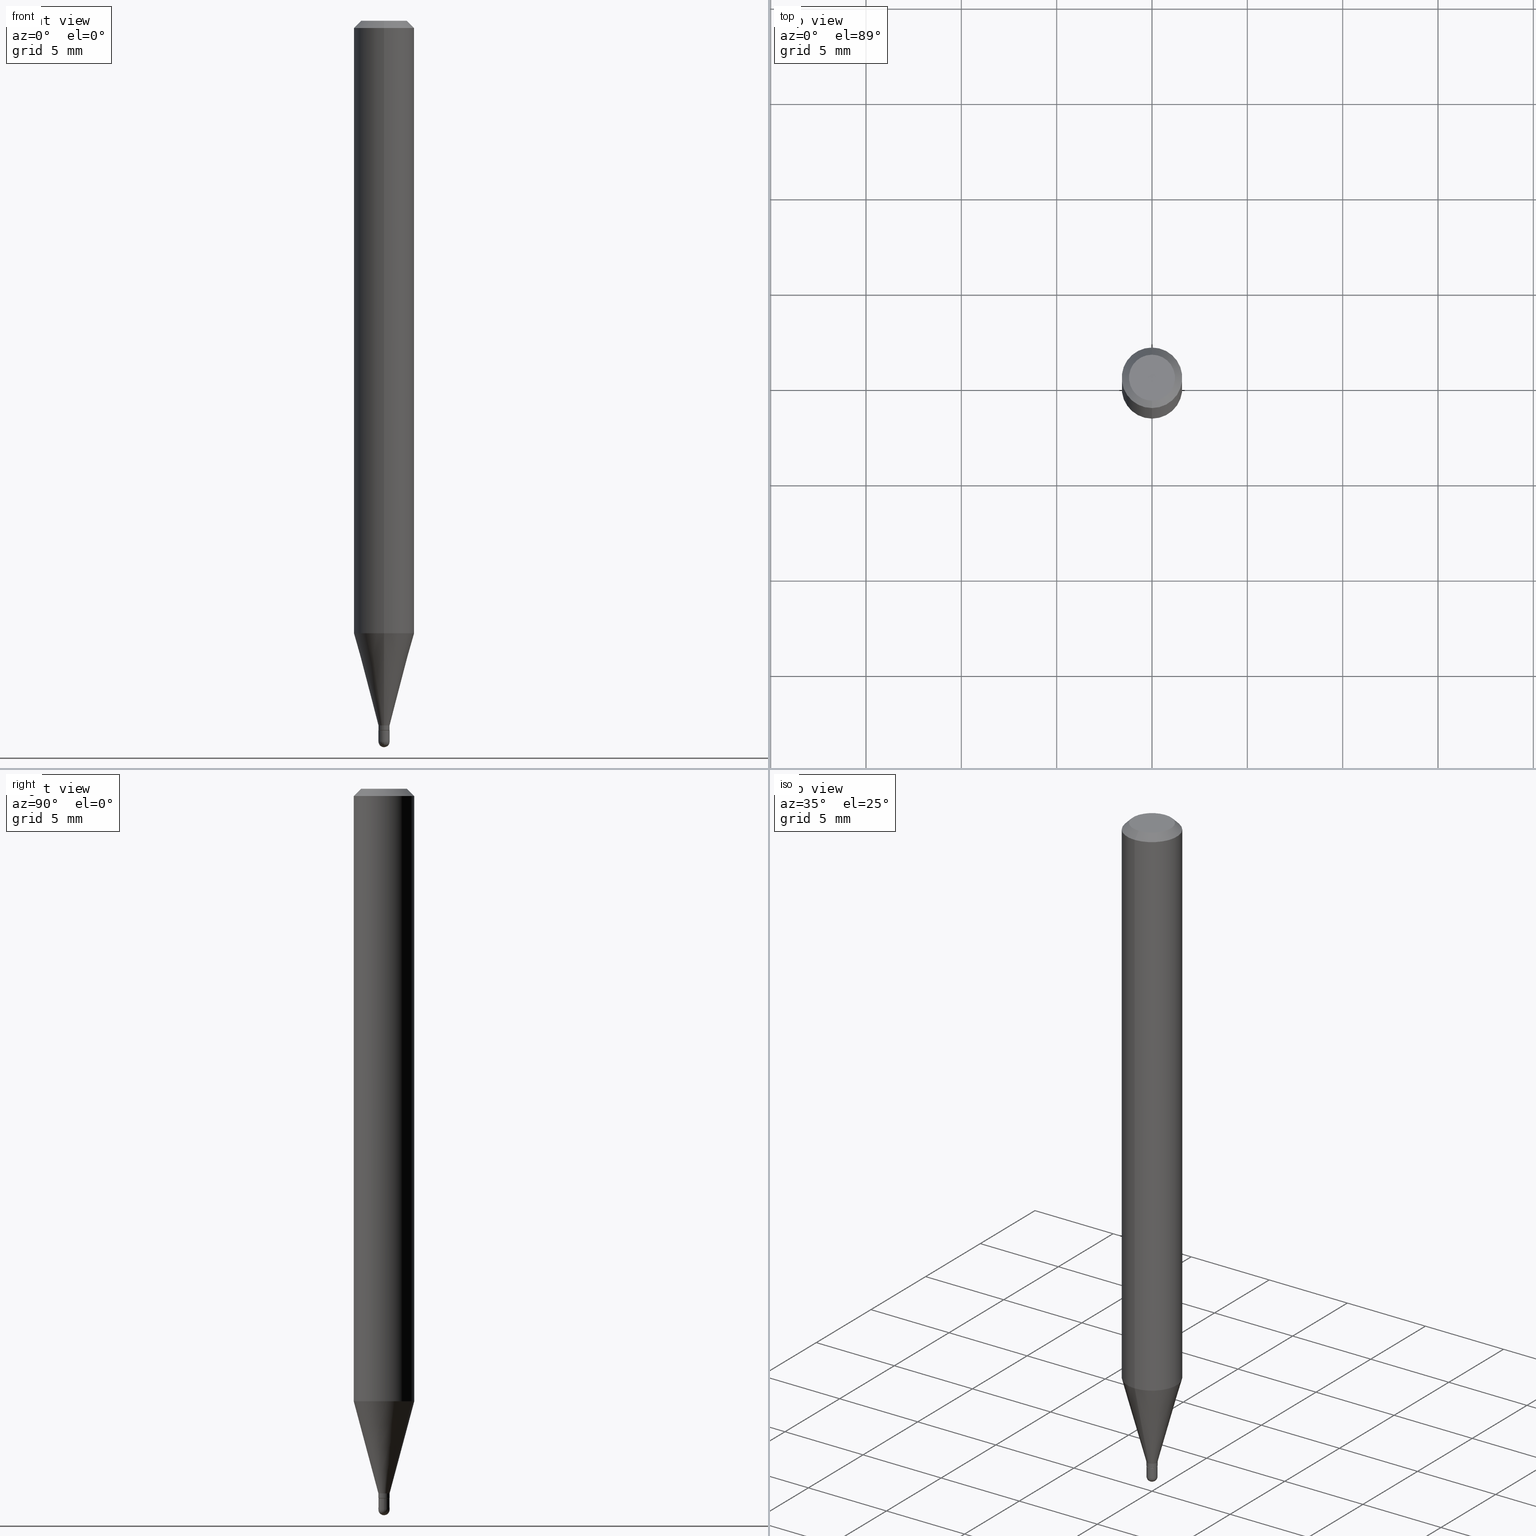
[diagram: canonical four-view strip — front | top / right | iso, engineering-drawing reading convention]
A machine part, canonical four-view strip (front | top / right | iso — engineering-drawing reading convention). The complete STEP part file that produces these views, byte-faithful:
ISO-10303-21;
HEADER;
FILE_DESCRIPTION (( 'STEP AP203' ),
    '1' );
FILE_NAME ('00687.STEP',
    '2024-03-07T18:01:51',
    ( '' ),
    ( '' ),
    'SwSTEP 2.0',
    'SolidWorks 2023',
    '' );
FILE_SCHEMA (( 'CONFIG_CONTROL_DESIGN' ));
ENDSEC;

DATA;
#1 = CARTESIAN_POINT ( 'NONE',  ( 2.166652610438211172E-46, -3.093421743981394745E-32, -8.859889004959399911E-18 ) ) ;
#2 = DIRECTION ( 'NONE',  ( -2.445462476138705994E-29, 3.491490403829918303E-15, 1.000000000000000000 ) ) ;
#3 = VERTEX_POINT ( 'NONE', #310 ) ;
#4 = LINE ( 'NONE', #309, #109 ) ;
#5 = DIRECTION ( 'NONE',  ( 1.839019923739600710E-15, 0.2588190451025250138, 0.9659258262890670910 ) ) ;
#6 = AXIS2_PLACEMENT_3D ( 'NONE', #473, #383, #121 ) ;
#7 = CIRCLE ( 'NONE', #511, 0.01149999999999992348 ) ;
#8 = ADVANCED_FACE ( 'NONE', ( #348 ), #200, .F. ) ;
#9 = ADVANCED_FACE ( 'NONE', ( #431 ), #44, .T. ) ;
#10 = DIRECTION ( 'NONE',  ( 1.000000000000000000, -6.982962677686291165E-15, 0.000000000000000000 ) ) ;
#11 = VERTEX_POINT ( 'NONE', #237 ) ;
#12 = MANIFOLD_SOLID_BREP ( 'Body-Move/Copy2[1]', #372 ) ;
#13 = FACE_OUTER_BOUND ( 'NONE', #119, .T. ) ;
#14 = CARTESIAN_POINT ( 'NONE',  ( -0.01149999999999999981, -5.074332652524203511E-15, -1.465000000000000080 ) ) ;
#15 = EDGE_CURVE ( 'NONE', #11, #404, #307, .T. ) ;
#16 = APPROVAL_DATE_TIME ( #485, #245 ) ;
#17 = CARTESIAN_POINT ( 'NONE',  ( 3.558147902781818147E-29, -5.080118537572531884E-15, -1.455000000000000293 ) ) ;
#18 = APPROVAL_PERSON_ORGANIZATION ( #74, #245, #453 ) ;
#19 = AXIS2_PLACEMENT_3D ( 'NONE', #390, #43, #205 ) ;
#20 = DIRECTION ( 'NONE',  ( 1.000000000000000000, -6.982962677686265922E-15, 4.883557194083112340E-29 ) ) ;
#21 = LINE ( 'NONE', #62, #341 ) ;
#22 = PRODUCT ( '00687', '00687', '', ( #231 ) ) ;
#23 = DATE_AND_TIME ( #222, #125 ) ;
#24 = DIRECTION ( 'NONE',  ( -6.982962677686266711E-15, -1.000000000000000000, 0.000000000000000000 ) ) ;
#25 = ORIENTED_EDGE ( 'NONE', *, *, #30, .F. ) ;
#26 = EDGE_CURVE ( 'NONE', #154, #280, #327, .T. ) ;
#27 = CARTESIAN_POINT ( 'NONE',  ( -4.287811248607203282E-16, -0.06250000000000005551, -0.01499999999999979128 ) ) ;
#28 = VERTEX_POINT ( 'NONE', #197 ) ;
#29 = CARTESIAN_POINT ( 'NONE',  ( 4.440892098500625669E-16, 0.06250000000000000000, -2.182181502393698939E-16 ) ) ;
#30 = EDGE_CURVE ( 'NONE', #425, #317, #487, .T. ) ;
#31 = DIRECTION ( 'NONE',  ( -6.982962677686265922E-15, -1.000000000000000000, 4.370956789862821150E-15 ) ) ;
#32 = ORIENTED_EDGE ( 'NONE', *, *, #456, .F. ) ;
#33 = CARTESIAN_POINT ( 'NONE',  ( 3.316907271900976096E-16, 0.04749999999999999362, -1.702757386844007983E-16 ) ) ;
#34 = DIRECTION ( 'NONE',  ( -2.445462476138705994E-29, 3.491490403829918303E-15, 1.000000000000000000 ) ) ;
#35 = CIRCLE ( 'NONE', #409, 0.01149999999999999981 ) ;
#36 = CARTESIAN_POINT ( 'NONE',  ( 3.640080318006575506E-29, -5.197069972868022017E-15, -1.488499999999999934 ) ) ;
#37 = ORIENTED_EDGE ( 'NONE', *, *, #99, .F. ) ;
#38 = DIRECTION ( 'NONE',  ( -2.445462476138705994E-29, 3.491490403829918303E-15, 1.000000000000000000 ) ) ;
#39 = ADVANCED_FACE ( 'NONE', ( #433 ), #86, .T. ) ;
#40 = CARTESIAN_POINT ( 'NONE',  ( 3.558147902781818147E-29, -5.080118537572531884E-15, -1.455000000000000293 ) ) ;
#41 = APPROVAL ( #337, 'UNSPECIFIED' ) ;
#42 = CARTESIAN_POINT ( 'NONE',  ( -4.364351673553916201E-16, -0.06250000000000000000, 2.182181502393698939E-16 ) ) ;
#43 = DIRECTION ( 'NONE',  ( -2.445462476138705994E-29, 3.491490403829918303E-15, 1.000000000000000000 ) ) ;
#44 = CONICAL_SURFACE ( 'NONE', #229, 0.01149999999999992348, 0.2617993877991502960 ) ;
#45 = CIRCLE ( 'NONE', #435, 0.06250000000000000000 ) ;
#46 = LINE ( 'NONE', #430, #282 ) ;
#47 = CARTESIAN_POINT ( 'NONE',  ( -8.030407079335600735E-17, -0.01150000000000507734, -1.464500000000000135 ) ) ;
#48 = DATE_TIME_ROLE ( 'classification_date' ) ;
#49 = CARTESIAN_POINT ( 'NONE',  ( 0.000000000000000000, 0.000000000000000000, 0.000000000000000000 ) ) ;
#50 = AXIS2_PLACEMENT_3D ( 'NONE', #134, #405, #65 ) ;
#51 = SPHERICAL_SURFACE ( 'NONE', #63, 0.01150000000000006919 ) ;
#52 = ADVANCED_FACE ( 'NONE', ( #355 ), #302, .T. ) ;
#53 = PERSON_AND_ORGANIZATION ( #467, #89 ) ;
#54 = DIRECTION ( 'NONE',  ( 6.982962677686265922E-15, 1.000000000000000000, 0.000000000000000000 ) ) ;
#55 = ADVANCED_FACE ( 'NONE', ( #144 ), #141, .F. ) ;
#56 = EDGE_LOOP ( 'NONE', ( #71, #115, #239, #506 ) ) ;
#57 = DIRECTION ( 'NONE',  ( -2.445462476138705994E-29, 3.491490403829918303E-15, 1.000000000000000000 ) ) ;
#58 = AXIS2_PLACEMENT_3D ( 'NONE', #136, #20, #54 ) ;
#59 = PRODUCT_DEFINITION_FORMATION_WITH_SPECIFIED_SOURCE ( 'ANY', '', #22, .NOT_KNOWN. ) ;
#60 = EDGE_CURVE ( 'NONE', #28, #269, #509, .T. ) ;
#61 = AXIS2_PLACEMENT_3D ( 'NONE', #465, #182, #295 ) ;
#62 = CARTESIAN_POINT ( 'NONE',  ( 0.01149999999999999981, -8.030407079339207309E-17, 5.607603292165326057E-31 ) ) ;
#63 = AXIS2_PLACEMENT_3D ( 'NONE', #488, #253, #178 ) ;
#64 = VERTEX_POINT ( 'NONE', #508 ) ;
#65 = DIRECTION ( 'NONE',  ( 1.000000000000000000, 0.000000000000000000, 0.000000000000000000 ) ) ;
#66 = FACE_OUTER_BOUND ( 'NONE', #376, .T. ) ;
#67 = EDGE_CURVE ( 'NONE', #403, #3, #250, .T. ) ;
#68 = EDGE_LOOP ( 'NONE', ( #32, #315, #503, #145 ) ) ;
#69 = DATE_TIME_ROLE ( 'creation_date' ) ;
#70 = CARTESIAN_POINT ( 'NONE',  ( -8.030407079339151842E-17, -0.01149999999999992348, 4.015213964404379099E-17 ) ) ;
#71 = ORIENTED_EDGE ( 'NONE', *, *, #349, .F. ) ;
#72 = CARTESIAN_POINT ( 'NONE',  ( 7.815970093364683513E-17, 0.01099999999999488540, -1.465000000000000080 ) ) ;
#73 = AXIS2_PLACEMENT_3D ( 'NONE', #36, #85, #480 ) ;
#74 = PERSON_AND_ORGANIZATION ( #467, #89 ) ;
#75 = CARTESIAN_POINT ( 'NONE',  ( -4.364351673553912750E-16, -0.06250000000000005551, -0.01499999999999979128 ) ) ;
#76 = ORIENTED_EDGE ( 'NONE', *, *, #481, .T. ) ;
#77 = SPHERICAL_SURFACE ( 'NONE', #421, 0.01150000000000006919 ) ;
#78 = EDGE_LOOP ( 'NONE', ( #293, #419, #273, #339 ) ) ;
#79 = CARTESIAN_POINT ( 'NONE',  ( 0.01149999999999999981, -5.236349137930007031E-15, -1.488499999999999934 ) ) ;
#80 = VERTEX_POINT ( 'NONE', #382 ) ;
#81 = CYLINDRICAL_SURFACE ( 'NONE', #343, 0.01149999999999992348 ) ;
#82 = PRODUCT_RELATED_PRODUCT_CATEGORY ( 'detail', '', ( #22 ) ) ;
#83 = EDGE_CURVE ( 'NONE', #494, #336, #232, .T. ) ;
#84 = DIRECTION ( 'NONE',  ( -6.982962677686265133E-15, -1.000000000000000000, 0.000000000000000000 ) ) ;
#85 = DIRECTION ( 'NONE',  ( -2.445468806185136597E-29, 3.491481338843145583E-15, 1.000000000000000000 ) ) ;
#86 = CYLINDRICAL_SURFACE ( 'NONE', #19, 0.06250000000000000000 ) ;
#87 = DIRECTION ( 'NONE',  ( -2.445462476138705994E-29, 3.491490403829918303E-15, 1.000000000000000000 ) ) ;
#88 = CIRCLE ( 'NONE', #126, 0.06250000000000000000 ) ;
#89 = ORGANIZATION ( 'UNSPECIFIED', 'UNSPECIFIED', '' ) ;
#90 = ORIENTED_EDGE ( 'NONE', *, *, #377, .F. ) ;
#91 = CONICAL_SURFACE ( 'NONE', #479, 0.01100000000000000110, 0.7853981633974739252 ) ;
#92 = DIRECTION ( 'NONE',  ( -7.105427357600999492E-15, -1.000000000000000000, 0.000000000000000000 ) ) ;
#93 = CALENDAR_DATE ( 2024, 7, 3 ) ;
#94 =( CONVERSION_BASED_UNIT ( 'INCH', #220 ) LENGTH_UNIT ( ) NAMED_UNIT ( #135 ) );
#95 = DIRECTION ( 'NONE',  ( -2.445462476138705994E-29, 3.491490403829918303E-15, 1.000000000000000000 ) ) ;
#96 = PERSON_AND_ORGANIZATION_ROLE ( 'creator' ) ;
#97 = CONICAL_SURFACE ( 'NONE', #102, 0.01100000000000000110, 0.7853981633974739252 ) ;
#98 = FACE_OUTER_BOUND ( 'NONE', #202, .T. ) ;
#99 = EDGE_CURVE ( 'NONE', #80, #269, #106, .T. ) ;
#100 = EDGE_CURVE ( 'NONE', #379, #3, #299, .T. ) ;
#101 = FACE_OUTER_BOUND ( 'NONE', #192, .T. ) ;
#102 = AXIS2_PLACEMENT_3D ( 'NONE', #238, #87, #384 ) ;
#103 = VERTEX_POINT ( 'NONE', #340 ) ;
#104 = PERSON_AND_ORGANIZATION ( #467, #89 ) ;
#105 = DIRECTION ( 'NONE',  ( 6.982962677686265922E-15, 1.000000000000000000, 0.000000000000000000 ) ) ;
#106 = LINE ( 'NONE', #265, #363 ) ;
#107 = EDGE_CURVE ( 'NONE', #404, #103, #422, .T. ) ;
#108 = EDGE_LOOP ( 'NONE', ( #37, #452, #221, #455, #346 ) ) ;
#109 = VECTOR ( 'NONE', #472, 39.37007874015748143 ) ;
#110 = EDGE_LOOP ( 'NONE', ( #412, #423 ) ) ;
#111 = ORIENTED_EDGE ( 'NONE', *, *, #164, .T. ) ;
#112 = CARTESIAN_POINT ( 'NONE',  ( 3.639096876774019405E-29, -5.198478316687040897E-15, -1.488499999999999934 ) ) ;
#113 = ORIENTED_EDGE ( 'NONE', *, *, #67, .F. ) ;
#114 = CARTESIAN_POINT ( 'NONE',  ( -8.030407079335594572E-17, -0.01150000000000500275, -1.455000000000000293 ) ) ;
#115 = ORIENTED_EDGE ( 'NONE', *, *, #188, .T. ) ;
#116 = CC_DESIGN_PERSON_AND_ORGANIZATION_ASSIGNMENT ( #130, #285, ( #59 ) ) ;
#117 = VECTOR ( 'NONE', #95, 39.37007874015748143 ) ;
#118 = DIRECTION ( 'NONE',  ( 1.000000000000000000, -6.982962677686291165E-15, 0.000000000000000000 ) ) ;
#119 = EDGE_LOOP ( 'NONE', ( #173, #76, #301, #142 ) ) ;
#120 = DIRECTION ( 'NONE',  ( 1.000000000000000000, -6.982962677686267499E-15, 4.876176775795935793E-29 ) ) ;
#121 = DIRECTION ( 'NONE',  ( 1.000000000000000000, -6.982962677686291165E-15, 0.000000000000000000 ) ) ;
#122 = DIRECTION ( 'NONE',  ( -2.445462476138705994E-29, 3.491490403829918303E-15, 1.000000000000000000 ) ) ;
#123 = CARTESIAN_POINT ( 'NONE',  ( 8.171241461244653802E-17, 0.01149999999999484421, -1.455000000000000293 ) ) ;
#124 = DIRECTION ( 'NONE',  ( -6.982962677686266711E-15, -1.000000000000000000, 3.491490403829918697E-15 ) ) ;
#125 = LOCAL_TIME ( 13, 1, 51.00000000000000000, #462 ) ;
#126 = AXIS2_PLACEMENT_3D ( 'NONE', #234, #378, #31 ) ;
#127 = CALENDAR_DATE ( 2024, 7, 3 ) ;
#128 = DIRECTION ( 'NONE',  ( -2.445468806185136597E-29, 3.491481338843145583E-15, 1.000000000000000000 ) ) ;
#129 = CARTESIAN_POINT ( 'NONE',  ( 4.440892098500932831E-16, 0.06249999999999557992, -1.264665408813988146 ) ) ;
#130 = PERSON_AND_ORGANIZATION ( #467, #89 ) ;
#131 = ADVANCED_FACE ( 'NONE', ( #66 ), #191, .T. ) ;
#132 = APPROVAL ( #324, 'UNSPECIFIED' ) ;
#133 = CIRCLE ( 'NONE', #507, 0.06250000000000000000 ) ;
#134 = CARTESIAN_POINT ( 'NONE',  ( 0.000000000000000000, 0.000000000000000000, 0.000000000000000000 ) ) ;
#135 = DIMENSIONAL_EXPONENTS ( 1.000000000000000000, 0.000000000000000000, 0.000000000000000000, 0.000000000000000000, 0.000000000000000000, 0.000000000000000000, 0.000000000000000000 ) ;
#136 = CARTESIAN_POINT ( 'NONE',  ( 3.639096876774019405E-29, -5.198478316687040897E-15, -1.488499999999999934 ) ) ;
#137 = PRODUCT_DEFINITION_SHAPE ( 'NONE', 'NONE',  #252 ) ;
#138 = ORIENTED_EDGE ( 'NONE', *, *, #489, .F. ) ;
#139 = LOCAL_TIME ( 13, 1, 51.00000000000000000, #143 ) ;
#140 = PERSON_AND_ORGANIZATION_ROLE ( 'creator' ) ;
#141 = PLANE ( 'NONE',  #218 ) ;
#142 = ORIENTED_EDGE ( 'NONE', *, *, #211, .F. ) ;
#143 = COORDINATED_UNIVERSAL_TIME_OFFSET ( 5, 0, .BEHIND. ) ;
#144 = FACE_OUTER_BOUND ( 'NONE', #464, .T. ) ;
#145 = ORIENTED_EDGE ( 'NONE', *, *, #294, .F. ) ;
#146 = DATE_AND_TIME ( #504, #292 ) ;
#147 = CARTESIAN_POINT ( 'NONE',  ( 3.668193714208060812E-31, -5.237235605744880487E-17, -0.01500000000000000812 ) ) ;
#148 = ORIENTED_EDGE ( 'NONE', *, *, #100, .F. ) ;
#149 = AXIS2_PLACEMENT_3D ( 'NONE', #314, #128, #350 ) ;
#150 = APPLICATION_PROTOCOL_DEFINITION ( 'international standard', 'config_control_design', 1994, #261 ) ;
#151 = APPROVAL_PERSON_ORGANIZATION ( #104, #41, #380 ) ;
#152 = DIRECTION ( 'NONE',  ( -2.445462476138705994E-29, 3.491490403829918303E-15, 1.000000000000000000 ) ) ;
#153 = AXIS2_PLACEMENT_3D ( 'NONE', #206, #318, #10 ) ;
#154 = VERTEX_POINT ( 'NONE', #189 ) ;
#155 = DIRECTION ( 'NONE',  ( 2.445462476138705994E-29, -3.491490403829918303E-15, -1.000000000000000000 ) ) ;
#156 = ORIENTED_EDGE ( 'NONE', *, *, #83, .T. ) ;
#157 = EDGE_CURVE ( 'NONE', #269, #28, #35, .T. ) ;
#158 = DIRECTION ( 'NONE',  ( -2.445468806185136597E-29, 3.491481338843145583E-15, 1.000000000000000000 ) ) ;
#159 = ORIENTED_EDGE ( 'NONE', *, *, #15, .F. ) ;
#160 = LOCAL_TIME ( 13, 1, 51.00000000000000000, #438 ) ;
#161 = FACE_OUTER_BOUND ( 'NONE', #271, .T. ) ;
#162 = AXIS2_PLACEMENT_3D ( 'NONE', #186, #370, #304 ) ;
#163 = ORIENTED_EDGE ( 'NONE', *, *, #489, .T. ) ;
#164 = EDGE_CURVE ( 'NONE', #103, #190, #133, .T. ) ;
#165 = DIRECTION ( 'NONE',  ( -2.445462476138705994E-29, 3.491490403829918303E-15, 1.000000000000000000 ) ) ;
#166 = CARTESIAN_POINT ( 'NONE',  ( 8.030407079342786765E-17, 0.01149999999999488411, -1.465000000000000080 ) ) ;
#167 = CARTESIAN_POINT ( 'NONE',  ( 0.000000000000000000, 0.000000000000000000, 0.000000000000000000 ) ) ;
#168 = DIRECTION ( 'NONE',  ( -6.982962677686265922E-15, -1.000000000000000000, 3.483106191921935554E-15 ) ) ;
#169 = CIRCLE ( 'NONE', #58, 0.01150000000000006919 ) ;
#170 = EDGE_LOOP ( 'NONE', ( #296, #483, #298, #227, #225 ) ) ;
#171 = DIRECTION ( 'NONE',  ( -2.445462476138705994E-29, 3.491490403829918303E-15, 1.000000000000000000 ) ) ;
#172 = ADVANCED_FACE ( 'NONE', ( #459 ), #77, .T. ) ;
#173 = ORIENTED_EDGE ( 'NONE', *, *, #67, .T. ) ;
#174 = LINE ( 'NONE', #399, #117 ) ;
#175 = PERSON_AND_ORGANIZATION ( #467, #89 ) ;
#176 = MANIFOLD_SOLID_BREP ( 'Body-Move/Copy2[2]', #249 ) ;
#177 =( NAMED_UNIT ( * ) PLANE_ANGLE_UNIT ( ) SI_UNIT ( $, .RADIAN. ) );
#178 = DIRECTION ( 'NONE',  ( 6.982962677686265922E-15, 1.000000000000000000, 0.000000000000000000 ) ) ;
#179 =( LENGTH_UNIT ( ) NAMED_UNIT ( * ) SI_UNIT ( $, .METRE. ) );
#180 = ORIENTED_EDGE ( 'NONE', *, *, #482, .F. ) ;
#181 = APPROVAL_DATE_TIME ( #23, #41 ) ;
#182 = DIRECTION ( 'NONE',  ( -2.445468806185136597E-29, 3.491481338843145583E-15, 1.000000000000000000 ) ) ;
#183 = ORIENTED_EDGE ( 'NONE', *, *, #391, .F. ) ;
#184 = APPROVAL_PERSON_ORGANIZATION ( #53, #132, #289 ) ;
#185 = CIRCLE ( 'NONE', #196, 0.06250000000000000000 ) ;
#186 = CARTESIAN_POINT ( 'NONE',  ( 0.000000000000000000, 0.000000000000000000, 0.000000000000000000 ) ) ;
#187 = ORIENTED_EDGE ( 'NONE', *, *, #493, .F. ) ;
#188 = EDGE_CURVE ( 'NONE', #317, #190, #332, .T. ) ;
#189 = CARTESIAN_POINT ( 'NONE',  ( -8.171241461237535565E-17, -0.01150000000000523347, -1.488499999999999934 ) ) ;
#190 = VERTEX_POINT ( 'NONE', #75 ) ;
#191 = CYLINDRICAL_SURFACE ( 'NONE', #162, 0.01149999999999992348 ) ;
#192 = EDGE_LOOP ( 'NONE', ( #224, #411, #90, #260 ) ) ;
#193 = CIRCLE ( 'NONE', #371, 0.01149999999999992521 ) ;
#194 = CARTESIAN_POINT ( 'NONE',  ( 3.558147902781818147E-29, -5.080118537572531884E-15, -1.455000000000000293 ) ) ;
#195 = EDGE_CURVE ( 'NONE', #404, #336, #88, .T. ) ;
#196 = AXIS2_PLACEMENT_3D ( 'NONE', #203, #165, #316 ) ;
#197 = CARTESIAN_POINT ( 'NONE',  ( 0.01149999999999999981, -5.195324232198600513E-15, -1.465000000000000080 ) ) ;
#198 = DIRECTION ( 'NONE',  ( -6.982962677686265922E-15, -1.000000000000000000, 0.000000000000000000 ) ) ;
#199 = ORIENTED_EDGE ( 'NONE', *, *, #345, .T. ) ;
#200 = PLANE ( 'NONE',  #352 ) ;
#201 = CARTESIAN_POINT ( 'NONE',  ( 0.000000000000000000, 0.000000000000000000, 0.000000000000000000 ) ) ;
#202 = EDGE_LOOP ( 'NONE', ( #187, #138 ) ) ;
#203 = CARTESIAN_POINT ( 'NONE',  ( 3.092691802125223590E-29, -4.415567138929678852E-15, -1.264665408813987924 ) ) ;
#204 = CONICAL_SURFACE ( 'NONE', #274, 0.06250000000000000000, 0.7853981633974483900 ) ;
#205 = DIRECTION ( 'NONE',  ( -6.982962677686265922E-15, -1.000000000000000000, 3.491490403829918303E-15 ) ) ;
#206 = CARTESIAN_POINT ( 'NONE',  ( 3.640080318006575506E-29, -5.197069972868022017E-15, -1.488499999999999934 ) ) ;
#207 = DIRECTION ( 'NONE',  ( -1.000000000000000000, 7.105427357601001070E-15, -4.926315508542082329E-29 ) ) ;
#208 = EDGE_CURVE ( 'NONE', #11, #494, #313, .T. ) ;
#209 = SHAPE_DEFINITION_REPRESENTATION ( #137, #417 ) ;
#210 = ADVANCED_FACE ( 'NONE', ( #512 ), #204, .T. ) ;
#211 = EDGE_CURVE ( 'NONE', #403, #494, #454, .T. ) ;
#212 = CARTESIAN_POINT ( 'NONE',  ( 3.582602527543203724E-29, -5.115033441610829497E-15, -1.465000000000000080 ) ) ;
#213 = DIRECTION ( 'NONE',  ( -2.445462476138705994E-29, 3.491490403829918303E-15, 1.000000000000000000 ) ) ;
#214 = ADVANCED_FACE ( 'NONE', ( #432 ), #320, .T. ) ;
#215 = ORIENTED_EDGE ( 'NONE', *, *, #493, .T. ) ;
#216 = CARTESIAN_POINT ( 'NONE',  ( 3.582602527543203724E-29, -5.115033441610829497E-15, -1.465000000000000080 ) ) ;
#217 = CC_DESIGN_SECURITY_CLASSIFICATION ( #495, ( #59 ) ) ;
#218 = AXIS2_PLACEMENT_3D ( 'NONE', #33, #338, #297 ) ;
#219 = CIRCLE ( 'NONE', #334, 0.01150000000000006919 ) ;
#220 = LENGTH_MEASURE_WITH_UNIT ( LENGTH_MEASURE( 0.02539999999999999897 ), #179 );
#221 = ORIENTED_EDGE ( 'NONE', *, *, #26, .T. ) ;
#222 = CALENDAR_DATE ( 2024, 7, 3 ) ;
#223 = DIRECTION ( 'NONE',  ( -2.445468806185136877E-29, 3.491481338843145188E-15, 1.000000000000000000 ) ) ;
#224 = ORIENTED_EDGE ( 'NONE', *, *, #325, .F. ) ;
#225 = ORIENTED_EDGE ( 'NONE', *, *, #377, .T. ) ;
#226 = DIRECTION ( 'NONE',  ( -2.445462476138705994E-29, 3.491490403829918303E-15, 1.000000000000000000 ) ) ;
#227 = ORIENTED_EDGE ( 'NONE', *, *, #500, .F. ) ;
#228 = CC_DESIGN_DATE_AND_TIME_ASSIGNMENT ( #448, #48, ( #495 ) ) ;
#229 = AXIS2_PLACEMENT_3D ( 'NONE', #40, #388, #84 ) ;
#230 = CIRCLE ( 'NONE', #444, 0.01149999999999999981 ) ;
#231 = MECHANICAL_CONTEXT ( 'NONE', #413, 'mechanical' ) ;
#232 = LINE ( 'NONE', #114, #353 ) ;
#233 = APPROVAL_STATUS ( 'not_yet_approved' ) ;
#234 = CARTESIAN_POINT ( 'NONE',  ( 3.092691802125223590E-29, -4.415567138929678852E-15, -1.264665408813987924 ) ) ;
#235 = VERTEX_POINT ( 'NONE', #354 ) ;
#236 = DIRECTION ( 'NONE',  ( -6.982962677686265922E-15, -1.000000000000000000, 3.483106191921935554E-15 ) ) ;
#237 = CARTESIAN_POINT ( 'NONE',  ( 2.629008122312701386E-16, 0.01149999999999484421, -1.455000000000000293 ) ) ;
#238 = CARTESIAN_POINT ( 'NONE',  ( 3.582602527543203724E-29, -5.115033441610829497E-15, -1.465000000000000080 ) ) ;
#239 = ORIENTED_EDGE ( 'NONE', *, *, #241, .T. ) ;
#240 = CARTESIAN_POINT ( 'NONE',  ( 3.640080318006575506E-29, -5.197069972868022017E-15, -1.488499999999999934 ) ) ;
#241 = EDGE_CURVE ( 'NONE', #190, #103, #45, .T. ) ;
#242 = ORIENTED_EDGE ( 'NONE', *, *, #195, .F. ) ;
#243 = CARTESIAN_POINT ( 'NONE',  ( 3.639096876774019405E-29, -5.198478316687040897E-15, -1.488499999999999934 ) ) ;
#244 = ORIENTED_EDGE ( 'NONE', *, *, #208, .T. ) ;
#245 = APPROVAL ( #233, 'UNSPECIFIED' ) ;
#246 = VECTOR ( 'NONE', #152, 39.37007874015748143 ) ;
#247 = CC_DESIGN_APPROVAL ( #245, ( #59 ) ) ;
#248 = CARTESIAN_POINT ( 'NONE',  ( -4.364351673553607559E-16, -0.06250000000000441314, -1.264665408813987479 ) ) ;
#249 = CLOSED_SHELL ( 'NONE', ( #397, #319, #52, #447, #9, #477, #39, #210, #55, #426, #287, #131 ) ) ;
#250 = CIRCLE ( 'NONE', #498, 0.01149999999999992521 ) ;
#251 = CARTESIAN_POINT ( 'NONE',  ( 3.558147902781818147E-29, -5.080118537572531884E-15, -1.455000000000000293 ) ) ;
#252 = PRODUCT_DEFINITION ( 'UNKNOWN', '', #59, #496 ) ;
#253 = DIRECTION ( 'NONE',  ( -1.000000000000000000, 6.982962677686265922E-15, -4.883557194083112901E-29 ) ) ;
#254 = AXIS2_PLACEMENT_3D ( 'NONE', #216, #213, #255 ) ;
#255 = DIRECTION ( 'NONE',  ( -6.982962677686265922E-15, -1.000000000000000000, 0.000000000000000000 ) ) ;
#256 = FACE_OUTER_BOUND ( 'NONE', #386, .T. ) ;
#257 = DIRECTION ( 'NONE',  ( -6.982962677686265133E-15, -1.000000000000000000, 0.000000000000000000 ) ) ;
#258 = ORIENTED_EDGE ( 'NONE', *, *, #100, .T. ) ;
#259 = AXIS2_PLACEMENT_3D ( 'NONE', #322, #446, #491 ) ;
#260 = ORIENTED_EDGE ( 'NONE', *, *, #26, .F. ) ;
#261 = APPLICATION_CONTEXT ( 'configuration controlled 3d designs of mechanical parts and assemblies' ) ;
#262 = EDGE_CURVE ( 'NONE', #425, #103, #4, .T. ) ;
#263 = DIRECTION ( 'NONE',  ( 6.982962677686265922E-15, 1.000000000000000000, -3.483106191921935554E-15 ) ) ;
#264 = CC_DESIGN_PERSON_AND_ORGANIZATION_ASSIGNMENT ( #291, #369, ( #22 ) ) ;
#265 = CARTESIAN_POINT ( 'NONE',  ( -0.01149999999999999981, 8.171241461241151999E-17, -5.656775353793142476E-31 ) ) ;
#266 = LOCAL_TIME ( 13, 1, 51.00000000000000000, #402 ) ;
#267 = AXIS2_PLACEMENT_3D ( 'NONE', #201, #357, #120 ) ;
#268 = DIRECTION ( 'NONE',  ( -2.445462476138705994E-29, 3.491490403829918303E-15, 1.000000000000000000 ) ) ;
#269 = VERTEX_POINT ( 'NONE', #14 ) ;
#270 = DIRECTION ( 'NONE',  ( -2.445462476138705994E-29, 3.491490403829918303E-15, 1.000000000000000000 ) ) ;
#271 = EDGE_LOOP ( 'NONE', ( #215, #258, #113, #183 ) ) ;
#272 = DIRECTION ( 'NONE',  ( -1.807323732225330534E-15, -0.2588190451025182415, 0.9659258262890689783 ) ) ;
#273 = ORIENTED_EDGE ( 'NONE', *, *, #345, .F. ) ;
#274 = AXIS2_PLACEMENT_3D ( 'NONE', #497, #155, #263 ) ;
#275 = FACE_OUTER_BOUND ( 'NONE', #333, .T. ) ;
#276 = DIRECTION ( 'NONE',  ( 2.438088387897960049E-29, -3.491481338843145188E-15, -1.000000000000000000 ) ) ;
#277 = CARTESIAN_POINT ( 'NONE',  ( 8.030407079342869349E-17, 0.01149999999999483553, -1.488499999999999934 ) ) ;
#278 = VERTEX_POINT ( 'NONE', #277 ) ;
#279 = CYLINDRICAL_SURFACE ( 'NONE', #149, 0.01149999999999999981 ) ;
#280 = VERTEX_POINT ( 'NONE', #79 ) ;
#281 = CARTESIAN_POINT ( 'NONE',  ( 7.993605777304681600E-17, 0.01099999999999488540, -1.465000000000000080 ) ) ;
#282 = VECTOR ( 'NONE', #356, 39.37007874015748143 ) ;
#283 = EDGE_CURVE ( 'NONE', #80, #154, #303, .T. ) ;
#284 = DIRECTION ( 'NONE',  ( -2.445462476138705994E-29, 3.491490403829918303E-15, 1.000000000000000000 ) ) ;
#285 = PERSON_AND_ORGANIZATION_ROLE ( 'design_supplier' ) ;
#286 = ORIENTED_EDGE ( 'NONE', *, *, #241, .F. ) ;
#287 = ADVANCED_FACE ( 'NONE', ( #275 ), #91, .T. ) ;
#288 = ORIENTED_EDGE ( 'NONE', *, *, #391, .T. ) ;
#289 = APPROVAL_ROLE ( '' ) ;
#290 = PLANE ( 'NONE',  #259 ) ;
#291 = PERSON_AND_ORGANIZATION ( #467, #89 ) ;
#292 = LOCAL_TIME ( 13, 1, 51.00000000000000000, #501 ) ;
#293 = ORIENTED_EDGE ( 'NONE', *, *, #381, .T. ) ;
#294 = EDGE_CURVE ( 'NONE', #278, #80, #366, .T. ) ;
#295 = DIRECTION ( 'NONE',  ( 1.000000000000000000, -6.982962677686291165E-15, 0.000000000000000000 ) ) ;
#296 = ORIENTED_EDGE ( 'NONE', *, *, #294, .T. ) ;
#297 = DIRECTION ( 'NONE',  ( 6.982962677686265922E-15, 1.000000000000000000, -3.491490403829918303E-15 ) ) ;
#298 = ORIENTED_EDGE ( 'NONE', *, *, #60, .F. ) ;
#299 = LINE ( 'NONE', #72, #300 ) ;
#300 = VECTOR ( 'NONE', #375, 39.37007874015748143 ) ;
#301 = ORIENTED_EDGE ( 'NONE', *, *, #381, .F. ) ;
#302 = CONICAL_SURFACE ( 'NONE', #365, 0.06250000000000000000, 0.7853981633974483900 ) ;
#303 = CIRCLE ( 'NONE', #73, 0.01149999999999999981 ) ;
#304 = DIRECTION ( 'NONE',  ( -6.982962677686265133E-15, -1.000000000000000000, 3.491490403829917909E-15 ) ) ;
#305 = ORIENTED_EDGE ( 'NONE', *, *, #481, .F. ) ;
#306 = DIRECTION ( 'NONE',  ( -4.851104656540964275E-15, -0.7071067811865500152, -0.7071067811865450192 ) ) ;
#307 = LINE ( 'NONE', #123, #442 ) ;
#308 = ADVANCED_FACE ( 'NONE', ( #437 ), #279, .T. ) ;
#309 = CARTESIAN_POINT ( 'NONE',  ( 4.364351673553919652E-16, 0.06249999999999995143, -0.01500000000000022669 ) ) ;
#310 = CARTESIAN_POINT ( 'NONE',  ( 8.171241461244651337E-17, 0.01149999999999477308, -1.464500000000000135 ) ) ;
#311 = AXIS2_PLACEMENT_3D ( 'NONE', #17, #57, #257 ) ;
#312 = CC_DESIGN_PERSON_AND_ORGANIZATION_ASSIGNMENT ( #406, #441, ( #495 ) ) ;
#313 = CIRCLE ( 'NONE', #461, 0.01149999999999992348 ) ;
#314 = CARTESIAN_POINT ( 'NONE',  ( 0.000000000000000000, 0.000000000000000000, 0.000000000000000000 ) ) ;
#315 = ORIENTED_EDGE ( 'NONE', *, *, #325, .T. ) ;
#316 = DIRECTION ( 'NONE',  ( -6.982962677686265922E-15, -1.000000000000000000, 4.370956789862821150E-15 ) ) ;
#317 = VERTEX_POINT ( 'NONE', #468 ) ;
#318 = DIRECTION ( 'NONE',  ( -2.445468806185136597E-29, 3.491481338843145583E-15, 1.000000000000000000 ) ) ;
#319 = ADVANCED_FACE ( 'NONE', ( #161 ), #97, .T. ) ;
#320 = CYLINDRICAL_SURFACE ( 'NONE', #267, 0.01149999999999999981 ) ;
#321 = VECTOR ( 'NONE', #306, 39.37007874015748143 ) ;
#322 = CARTESIAN_POINT ( 'NONE',  ( 3.582602527543203724E-29, -5.115033441610829497E-15, -1.465000000000000080 ) ) ;
#323 = CALENDAR_DATE ( 2024, 7, 3 ) ;
#324 = APPROVAL_STATUS ( 'not_yet_approved' ) ;
#325 = EDGE_CURVE ( 'NONE', #235, #154, #219, .T. ) ;
#326 =( NAMED_UNIT ( * ) SI_UNIT ( $, .STERADIAN. ) SOLID_ANGLE_UNIT ( ) );
#327 = CIRCLE ( 'NONE', #6, 0.01149999999999999981 ) ;
#328 = CYLINDRICAL_SURFACE ( 'NONE', #451, 0.06250000000000000000 ) ;
#329 = EDGE_CURVE ( 'NONE', #336, #190, #389, .T. ) ;
#330 = ORIENTED_EDGE ( 'NONE', *, *, #482, .T. ) ;
#331 = PERSON_AND_ORGANIZATION ( #467, #89 ) ;
#332 = LINE ( 'NONE', #27, #321 ) ;
#333 = EDGE_LOOP ( 'NONE', ( #148, #163, #288, #180 ) ) ;
#334 = AXIS2_PLACEMENT_3D ( 'NONE', #243, #207, #92 ) ;
#335 = DIRECTION ( 'NONE',  ( 6.982962677686265922E-15, 1.000000000000000000, -3.483106191921935554E-15 ) ) ;
#336 = VERTEX_POINT ( 'NONE', #248 ) ;
#337 = APPROVAL_STATUS ( 'not_yet_approved' ) ;
#338 = DIRECTION ( 'NONE',  ( 2.445462476138705433E-29, -3.491490403829918303E-15, -1.000000000000000000 ) ) ;
#339 = ORIENTED_EDGE ( 'NONE', *, *, #83, .F. ) ;
#340 = CARTESIAN_POINT ( 'NONE',  ( 4.440892098500936776E-16, 0.06249999999999993755, -0.01500000000000022669 ) ) ;
#341 = VECTOR ( 'NONE', #439, 39.37007874015748143 ) ;
#342 = ORIENTED_EDGE ( 'NONE', *, *, #208, .F. ) ;
#343 = AXIS2_PLACEMENT_3D ( 'NONE', #167, #387, #394 ) ;
#344 = DIRECTION ( 'NONE',  ( -2.445462476138705994E-29, 3.491490403829918303E-15, 1.000000000000000000 ) ) ;
#345 = EDGE_CURVE ( 'NONE', #336, #404, #185, .T. ) ;
#346 = ORIENTED_EDGE ( 'NONE', *, *, #157, .F. ) ;
#347 = DIRECTION ( 'NONE',  ( -2.445462476138705994E-29, 3.491490403829918303E-15, 1.000000000000000000 ) ) ;
#348 = FACE_OUTER_BOUND ( 'NONE', #110, .T. ) ;
#349 = EDGE_CURVE ( 'NONE', #317, #425, #471, .T. ) ;
#350 = DIRECTION ( 'NONE',  ( 1.000000000000000000, -6.982962677686267499E-15, 4.876176775795935793E-29 ) ) ;
#351 = DIRECTION ( 'NONE',  ( -1.000000000000000000, 6.982962677686265922E-15, -4.876176775795935793E-29 ) ) ;
#352 = AXIS2_PLACEMENT_3D ( 'NONE', #166, #276, #351 ) ;
#353 = VECTOR ( 'NONE', #272, 39.37007874015748143 ) ;
#354 = CARTESIAN_POINT ( 'NONE',  ( 3.667711488661426565E-29, -5.237926180174228011E-15, -1.500000000000000222 ) ) ;
#355 = FACE_OUTER_BOUND ( 'NONE', #56, .T. ) ;
#356 = DIRECTION ( 'NONE',  ( -4.937700262164674260E-15, -0.7071067811865632269, 0.7071067811865319186 ) ) ;
#357 = DIRECTION ( 'NONE',  ( -2.445468806185136597E-29, 3.491481338843145583E-15, 1.000000000000000000 ) ) ;
#358 = CIRCLE ( 'NONE', #398, 0.01100000000000000110 ) ;
#359 = FACE_OUTER_BOUND ( 'NONE', #470, .T. ) ;
#360 = UNCERTAINTY_MEASURE_WITH_UNIT (LENGTH_MEASURE( 1.000000000000000082E-05 ), #94, 'distance_accuracy_value', 'NONE');
#361 = DIRECTION ( 'NONE',  ( -6.982962677686265922E-15, -1.000000000000000000, 3.491490403829918303E-15 ) ) ;
#362 = EDGE_LOOP ( 'NONE', ( #510, #367, #429, #458 ) ) ;
#363 = VECTOR ( 'NONE', #223, 39.37007874015748143 ) ;
#364 = CONICAL_SURFACE ( 'NONE', #311, 0.01149999999999992348, 0.2617993877991502960 ) ;
#365 = AXIS2_PLACEMENT_3D ( 'NONE', #502, #418, #335 ) ;
#366 = CIRCLE ( 'NONE', #153, 0.01149999999999999981 ) ;
#367 = ORIENTED_EDGE ( 'NONE', *, *, #195, .T. ) ;
#368 = DIRECTION ( 'NONE',  ( 1.000000000000000000, -6.982962677686291165E-15, 0.000000000000000000 ) ) ;
#369 = PERSON_AND_ORGANIZATION_ROLE ( 'design_owner' ) ;
#370 = DIRECTION ( 'NONE',  ( -2.445462476138705994E-29, 3.491490403829918303E-15, 1.000000000000000000 ) ) ;
#371 = AXIS2_PLACEMENT_3D ( 'NONE', #492, #284, #440 ) ;
#372 = CLOSED_SHELL ( 'NONE', ( #308, #172, #8, #415, #214 ) ) ;
#373 = ORIENTED_EDGE ( 'NONE', *, *, #107, .T. ) ;
#374 = AXIS2_PLACEMENT_3D ( 'NONE', #476, #2, #124 ) ;
#375 = DIRECTION ( 'NONE',  ( 5.024295867788190974E-15, 0.7071067811865681119, 0.7071067811865270336 ) ) ;
#376 = EDGE_LOOP ( 'NONE', ( #305, #330, #449, #342 ) ) ;
#377 = EDGE_CURVE ( 'NONE', #280, #278, #230, .T. ) ;
#378 = DIRECTION ( 'NONE',  ( -2.445462476138705994E-29, 3.491490403829918303E-15, 1.000000000000000000 ) ) ;
#379 = VERTEX_POINT ( 'NONE', #281 ) ;
#380 = APPROVAL_ROLE ( '' ) ;
#381 = EDGE_CURVE ( 'NONE', #494, #11, #7, .T. ) ;
#382 = CARTESIAN_POINT ( 'NONE',  ( -0.01149999999999999981, -5.074332652524203511E-15, -1.488499999999999934 ) ) ;
#383 = DIRECTION ( 'NONE',  ( -2.445468806185136597E-29, 3.491481338843145583E-15, 1.000000000000000000 ) ) ;
#384 = DIRECTION ( 'NONE',  ( -6.982962677686265922E-15, -1.000000000000000000, 0.000000000000000000 ) ) ;
#385 = CC_DESIGN_DATE_AND_TIME_ASSIGNMENT ( #146, #69, ( #252 ) ) ;
#386 = EDGE_LOOP ( 'NONE', ( #159, #244, #156, #242 ) ) ;
#387 = DIRECTION ( 'NONE',  ( -2.445462476138705994E-29, 3.491490403829918303E-15, 1.000000000000000000 ) ) ;
#388 = DIRECTION ( 'NONE',  ( -2.445462476138705994E-29, 3.491490403829918303E-15, 1.000000000000000000 ) ) ;
#389 = LINE ( 'NONE', #42, #400 ) ;
#390 = CARTESIAN_POINT ( 'NONE',  ( 0.000000000000000000, 0.000000000000000000, 0.000000000000000000 ) ) ;
#391 = EDGE_CURVE ( 'NONE', #64, #403, #46, .T. ) ;
#392 = AXIS2_PLACEMENT_3D ( 'NONE', #1, #34, #466 ) ;
#393 = CARTESIAN_POINT ( 'NONE',  ( 3.582602527543203724E-29, -5.115033441610829497E-15, -1.465000000000000080 ) ) ;
#394 = DIRECTION ( 'NONE',  ( -6.982962677686265133E-15, -1.000000000000000000, 3.491490403829917909E-15 ) ) ;
#395 = APPROVAL_DATE_TIME ( #486, #132 ) ;
#396 = CARTESIAN_POINT ( 'NONE',  ( -8.030407079335594572E-17, -0.01150000000000500275, -1.455000000000000293 ) ) ;
#397 = ADVANCED_FACE ( 'NONE', ( #13 ), #81, .T. ) ;
#398 = AXIS2_PLACEMENT_3D ( 'NONE', #212, #407, #484 ) ;
#399 = CARTESIAN_POINT ( 'NONE',  ( 8.171241461241096533E-17, 0.01149999999999992348, -4.015213964404379099E-17 ) ) ;
#400 = VECTOR ( 'NONE', #347, 39.37007874015748143 ) ;
#401 = CC_DESIGN_PERSON_AND_ORGANIZATION_ASSIGNMENT ( #331, #140, ( #252 ) ) ;
#402 = COORDINATED_UNIVERSAL_TIME_OFFSET ( 5, 0, .BEHIND. ) ;
#403 = VERTEX_POINT ( 'NONE', #47 ) ;
#404 = VERTEX_POINT ( 'NONE', #129 ) ;
#405 = DIRECTION ( 'NONE',  ( 0.000000000000000000, 0.000000000000000000, 1.000000000000000000 ) ) ;
#406 = PERSON_AND_ORGANIZATION ( #467, #89 ) ;
#407 = DIRECTION ( 'NONE',  ( -2.445462476138705994E-29, 3.491490403829918303E-15, 1.000000000000000000 ) ) ;
#408 = CC_DESIGN_APPROVAL ( #41, ( #252 ) ) ;
#409 = AXIS2_PLACEMENT_3D ( 'NONE', #463, #505, #368 ) ;
#410 = ORIENTED_EDGE ( 'NONE', *, *, #30, .T. ) ;
#411 = ORIENTED_EDGE ( 'NONE', *, *, #456, .T. ) ;
#412 = ORIENTED_EDGE ( 'NONE', *, *, #60, .T. ) ;
#413 = APPLICATION_CONTEXT ( 'configuration controlled 3d designs of mechanical parts and assemblies' ) ;
#414 = DIRECTION ( 'NONE',  ( -1.000000000000000000, 6.982962677686265922E-15, -4.883557194083112901E-29 ) ) ;
#415 = ADVANCED_FACE ( 'NONE', ( #101 ), #51, .T. ) ;
#416 = EDGE_LOOP ( 'NONE', ( #460, #25, #475, #111 ) ) ;
#417 = ADVANCED_BREP_SHAPE_REPRESENTATION ( '00687', ( #12, #176, #50 ), #428 ) ;
#418 = DIRECTION ( 'NONE',  ( 2.445462476138705994E-29, -3.491490403829918303E-15, -1.000000000000000000 ) ) ;
#419 = ORIENTED_EDGE ( 'NONE', *, *, #15, .T. ) ;
#420 = CC_DESIGN_PERSON_AND_ORGANIZATION_ASSIGNMENT ( #175, #96, ( #59 ) ) ;
#421 = AXIS2_PLACEMENT_3D ( 'NONE', #112, #414, #105 ) ;
#422 = LINE ( 'NONE', #29, #246 ) ;
#423 = ORIENTED_EDGE ( 'NONE', *, *, #157, .T. ) ;
#424 = DIRECTION ( 'NONE',  ( -6.982962677686265133E-15, -1.000000000000000000, 0.000000000000000000 ) ) ;
#425 = VERTEX_POINT ( 'NONE', #450 ) ;
#426 = ADVANCED_FACE ( 'NONE', ( #98 ), #290, .F. ) ;
#427 = CARTESIAN_POINT ( 'NONE',  ( 3.668193714208060812E-31, -5.237235605744880487E-17, -0.01500000000000000812 ) ) ;
#428 =( GEOMETRIC_REPRESENTATION_CONTEXT ( 3 ) GLOBAL_UNCERTAINTY_ASSIGNED_CONTEXT ( ( #360 ) ) GLOBAL_UNIT_ASSIGNED_CONTEXT ( ( #94, #177, #326 ) ) REPRESENTATION_CONTEXT ( 'NONE', 'WORKASPACE' ) );
#429 = ORIENTED_EDGE ( 'NONE', *, *, #329, .T. ) ;
#430 = CARTESIAN_POINT ( 'NONE',  ( -7.681258945451311115E-17, -0.01100000000000511680, -1.465000000000000080 ) ) ;
#431 = FACE_OUTER_BOUND ( 'NONE', #78, .T. ) ;
#432 = FACE_OUTER_BOUND ( 'NONE', #108, .T. ) ;
#433 = FACE_OUTER_BOUND ( 'NONE', #362, .T. ) ;
#434 = DIRECTION ( 'NONE',  ( -6.982962677686265133E-15, -1.000000000000000000, 0.000000000000000000 ) ) ;
#435 = AXIS2_PLACEMENT_3D ( 'NONE', #427, #122, #168 ) ;
#436 = CIRCLE ( 'NONE', #254, 0.01100000000000000110 ) ;
#437 = FACE_OUTER_BOUND ( 'NONE', #170, .T. ) ;
#438 = COORDINATED_UNIVERSAL_TIME_OFFSET ( 5, 0, .BEHIND. ) ;
#439 = DIRECTION ( 'NONE',  ( -2.445468806185136877E-29, 3.491481338843145188E-15, 1.000000000000000000 ) ) ;
#440 = DIRECTION ( 'NONE',  ( -6.982962677686266711E-15, -1.000000000000000000, 0.000000000000000000 ) ) ;
#441 = PERSON_AND_ORGANIZATION_ROLE ( 'classification_officer' ) ;
#442 = VECTOR ( 'NONE', #5, 39.37007874015748143 ) ;
#443 = APPLICATION_PROTOCOL_DEFINITION ( 'international standard', 'config_control_design', 1994, #413 ) ;
#444 = AXIS2_PLACEMENT_3D ( 'NONE', #240, #158, #118 ) ;
#445 = ORIENTED_EDGE ( 'NONE', *, *, #329, .F. ) ;
#446 = DIRECTION ( 'NONE',  ( -2.445462476138705433E-29, 3.491490403829918303E-15, 1.000000000000000000 ) ) ;
#447 = ADVANCED_FACE ( 'NONE', ( #359 ), #328, .T. ) ;
#448 = DATE_AND_TIME ( #127, #266 ) ;
#449 = ORIENTED_EDGE ( 'NONE', *, *, #211, .T. ) ;
#450 = CARTESIAN_POINT ( 'NONE',  ( 3.840629472727447874E-16, 0.04749999999999999362, -1.747056831868805136E-16 ) ) ;
#451 = AXIS2_PLACEMENT_3D ( 'NONE', #49, #171, #361 ) ;
#452 = ORIENTED_EDGE ( 'NONE', *, *, #283, .T. ) ;
#453 = APPROVAL_ROLE ( '' ) ;
#454 = LINE ( 'NONE', #70, #490 ) ;
#455 = ORIENTED_EDGE ( 'NONE', *, *, #500, .T. ) ;
#456 = EDGE_CURVE ( 'NONE', #235, #278, #169, .T. ) ;
#457 = CARTESIAN_POINT ( 'NONE',  ( 3.581379796305135763E-29, -5.113287696408915366E-15, -1.464500000000000135 ) ) ;
#458 = ORIENTED_EDGE ( 'NONE', *, *, #164, .F. ) ;
#459 = FACE_OUTER_BOUND ( 'NONE', #68, .T. ) ;
#460 = ORIENTED_EDGE ( 'NONE', *, *, #188, .F. ) ;
#461 = AXIS2_PLACEMENT_3D ( 'NONE', #194, #270, #424 ) ;
#462 = COORDINATED_UNIVERSAL_TIME_OFFSET ( 5, 0, .BEHIND. ) ;
#463 = CARTESIAN_POINT ( 'NONE',  ( 3.582611801061225047E-29, -5.115020161405208194E-15, -1.465000000000000080 ) ) ;
#464 = EDGE_LOOP ( 'NONE', ( #410, #499 ) ) ;
#465 = CARTESIAN_POINT ( 'NONE',  ( 3.582611801061225047E-29, -5.115020161405208194E-15, -1.465000000000000080 ) ) ;
#466 = DIRECTION ( 'NONE',  ( -6.982962677686266711E-15, -1.000000000000000000, 3.491490403829918697E-15 ) ) ;
#467 = PERSON ( 'UNSPECIFIED', 'UNSPECIFIED', 'UNSPECIFIED', ('UNSPECIFIED'), ('UNSPECIFIED'), ('UNSPECIFIED') ) ;
#468 = CARTESIAN_POINT ( 'NONE',  ( -3.773273898774340269E-16, -0.04749999999999999362, 1.569859051769617015E-16 ) ) ;
#469 = CC_DESIGN_APPROVAL ( #132, ( #495 ) ) ;
#470 = EDGE_LOOP ( 'NONE', ( #199, #373, #286, #445 ) ) ;
#471 = CIRCLE ( 'NONE', #374, 0.04749999999999999362 ) ;
#472 = DIRECTION ( 'NONE',  ( 4.937700262164548042E-15, 0.7071067811865451302, -0.7071067811865499042 ) ) ;
#473 = CARTESIAN_POINT ( 'NONE',  ( 3.640080318006575506E-29, -5.197069972868022017E-15, -1.488499999999999934 ) ) ;
#474 = DIRECTION ( 'NONE',  ( -2.445462476138705994E-29, 3.491490403829918303E-15, 1.000000000000000000 ) ) ;
#475 = ORIENTED_EDGE ( 'NONE', *, *, #262, .T. ) ;
#476 = CARTESIAN_POINT ( 'NONE',  ( 2.166652610438211172E-46, -3.093421743981394745E-32, -8.859889004959399911E-18 ) ) ;
#477 = ADVANCED_FACE ( 'NONE', ( #256 ), #364, .T. ) ;
#478 = SECURITY_CLASSIFICATION_LEVEL ( 'unclassified' ) ;
#479 = AXIS2_PLACEMENT_3D ( 'NONE', #393, #38, #198 ) ;
#480 = DIRECTION ( 'NONE',  ( 1.000000000000000000, -6.982962677686291165E-15, 0.000000000000000000 ) ) ;
#481 = EDGE_CURVE ( 'NONE', #3, #11, #174, .T. ) ;
#482 = EDGE_CURVE ( 'NONE', #3, #403, #193, .T. ) ;
#483 = ORIENTED_EDGE ( 'NONE', *, *, #99, .T. ) ;
#484 = DIRECTION ( 'NONE',  ( -6.982962677686265922E-15, -1.000000000000000000, 0.000000000000000000 ) ) ;
#485 = DATE_AND_TIME ( #323, #139 ) ;
#486 = DATE_AND_TIME ( #93, #160 ) ;
#487 = CIRCLE ( 'NONE', #392, 0.04749999999999999362 ) ;
#488 = CARTESIAN_POINT ( 'NONE',  ( 3.639096876774019405E-29, -5.198478316687040897E-15, -1.488499999999999934 ) ) ;
#489 = EDGE_CURVE ( 'NONE', #379, #64, #436, .T. ) ;
#490 = VECTOR ( 'NONE', #226, 39.37007874015748143 ) ;
#491 = DIRECTION ( 'NONE',  ( -6.982962677686265922E-15, -1.000000000000000000, 3.491490403829918303E-15 ) ) ;
#492 = CARTESIAN_POINT ( 'NONE',  ( 3.581379796305135763E-29, -5.113287696408915366E-15, -1.464500000000000135 ) ) ;
#493 = EDGE_CURVE ( 'NONE', #64, #379, #358, .T. ) ;
#494 = VERTEX_POINT ( 'NONE', #396 ) ;
#495 = SECURITY_CLASSIFICATION ( '', '', #478 ) ;
#496 = DESIGN_CONTEXT ( 'detailed design', #261, 'design' ) ;
#497 = CARTESIAN_POINT ( 'NONE',  ( 3.668193714208060812E-31, -5.237235605744880487E-17, -0.01500000000000000812 ) ) ;
#498 = AXIS2_PLACEMENT_3D ( 'NONE', #457, #268, #24 ) ;
#499 = ORIENTED_EDGE ( 'NONE', *, *, #349, .T. ) ;
#500 = EDGE_CURVE ( 'NONE', #280, #28, #21, .T. ) ;
#501 = COORDINATED_UNIVERSAL_TIME_OFFSET ( 5, 0, .BEHIND. ) ;
#502 = CARTESIAN_POINT ( 'NONE',  ( 3.668193714208060812E-31, -5.237235605744880487E-17, -0.01500000000000000812 ) ) ;
#503 = ORIENTED_EDGE ( 'NONE', *, *, #283, .F. ) ;
#504 = CALENDAR_DATE ( 2024, 7, 3 ) ;
#505 = DIRECTION ( 'NONE',  ( -2.445468806185136597E-29, 3.491481338843145583E-15, 1.000000000000000000 ) ) ;
#506 = ORIENTED_EDGE ( 'NONE', *, *, #262, .F. ) ;
#507 = AXIS2_PLACEMENT_3D ( 'NONE', #147, #344, #236 ) ;
#508 = CARTESIAN_POINT ( 'NONE',  ( -7.681258945451311115E-17, -0.01100000000000511680, -1.465000000000000080 ) ) ;
#509 = CIRCLE ( 'NONE', #61, 0.01149999999999999981 ) ;
#510 = ORIENTED_EDGE ( 'NONE', *, *, #107, .F. ) ;
#511 = AXIS2_PLACEMENT_3D ( 'NONE', #251, #474, #434 ) ;
#512 = FACE_OUTER_BOUND ( 'NONE', #416, .T. ) ;
ENDSEC;
END-ISO-10303-21;
